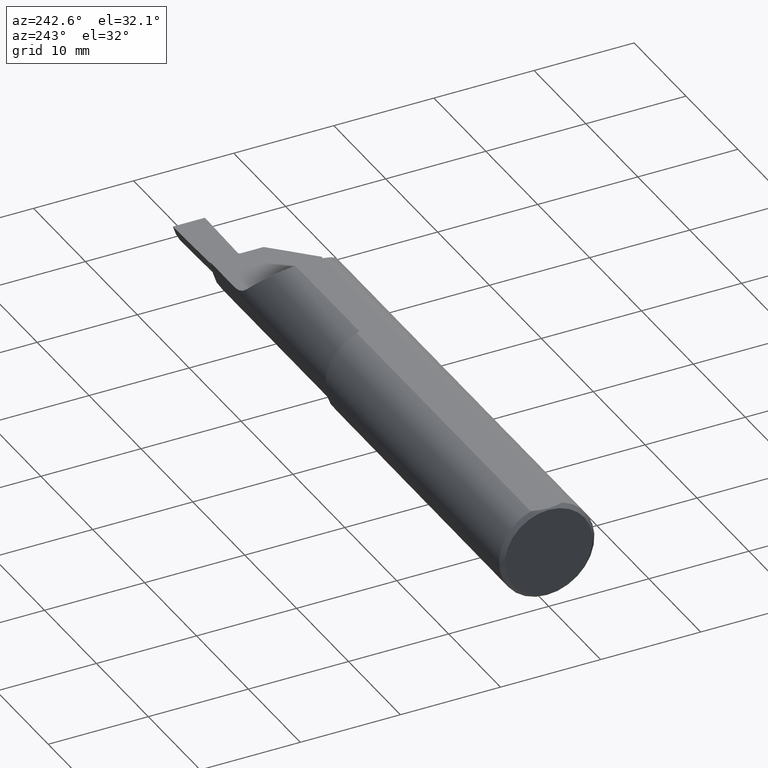
[diagram: clean part render]
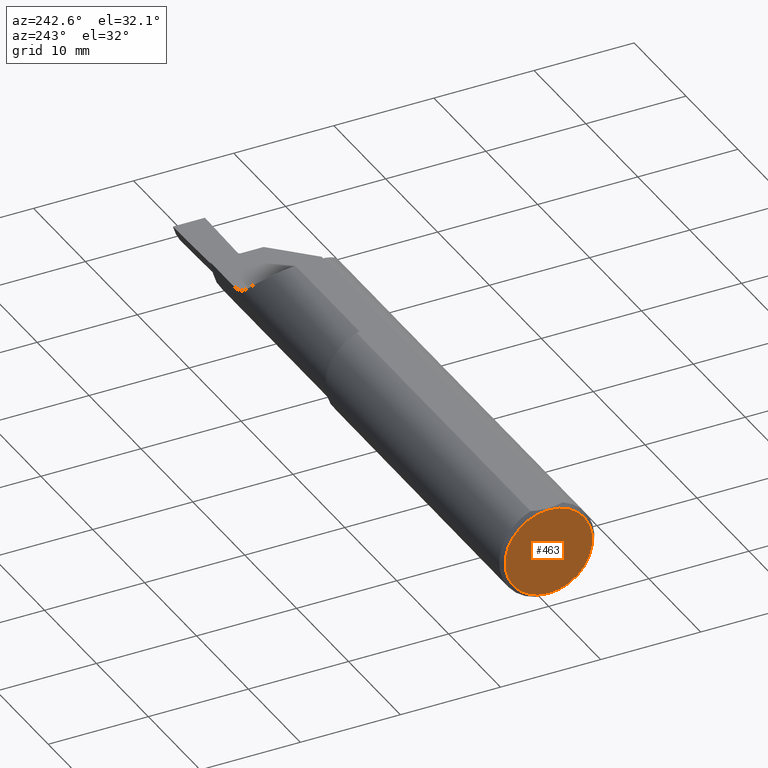
[diagram: same view with one face highlighted and labeled with its STEP entity id]
A machine part, auxiliary view. The second image highlights one B-rep face of the part: STEP entity #463.
In plain terms, the highlighted planar face has unit normal (1, 0, 0).
Its self-contained STEP definition (entity closure, byte-faithful):
#42 = DIRECTION ( 'NONE',  ( 1.000000000000000000, 0.000000000000000000, 0.000000000000000000 ) ) ;
#87 = DIRECTION ( 'NONE',  ( -1.000000000000000000, -0.000000000000000000, -0.000000000000000000 ) ) ;
#120 = EDGE_LOOP ( 'NONE', ( #359, #735 ) ) ;
#164 = CIRCLE ( 'NONE', #740, 0.1723500000000004195 ) ;
#165 = DIRECTION ( 'NONE',  ( -1.000000000000000000, -0.000000000000000000, -0.000000000000000000 ) ) ;
#226 = CIRCLE ( 'NONE', #697, 0.1723500000000004195 ) ;
#231 = FACE_OUTER_BOUND ( 'NONE', #120, .T. ) ;
#270 = VERTEX_POINT ( 'NONE', #537 ) ;
#299 = CARTESIAN_POINT ( 'NONE',  ( 0.000000000000000000, 2.202527268266516892E-17, 0.1723500000000004195 ) ) ;
#307 = EDGE_CURVE ( 'NONE', #270, #422, #164, .T. ) ;
#358 = CARTESIAN_POINT ( 'NONE',  ( 0.000000000000000000, 0.000000000000000000, 0.000000000000000000 ) ) ;
#359 = ORIENTED_EDGE ( 'NONE', *, *, #307, .T. ) ;
#402 = EDGE_CURVE ( 'NONE', #422, #270, #226, .T. ) ;
#422 = VERTEX_POINT ( 'NONE', #299 ) ;
#463 = ADVANCED_FACE ( 'NONE', ( #231 ), #700, .F. ) ;
#487 = CARTESIAN_POINT ( 'NONE',  ( 0.000000000000000000, 0.000000000000000000, 0.000000000000000000 ) ) ;
#491 = DIRECTION ( 'NONE',  ( 0.000000000000000000, 0.000000000000000000, -1.000000000000000000 ) ) ;
#537 = CARTESIAN_POINT ( 'NONE',  ( 0.000000000000000000, 0.000000000000000000, -0.1723500000000004195 ) ) ;
#618 = DIRECTION ( 'NONE',  ( 0.000000000000000000, 0.000000000000000000, -1.000000000000000000 ) ) ;
#620 = DIRECTION ( 'NONE',  ( 0.000000000000000000, 0.000000000000000000, -1.000000000000000000 ) ) ;
#627 = CARTESIAN_POINT ( 'NONE',  ( 0.000000000000000000, 0.000000000000000000, 0.000000000000000000 ) ) ;
#697 = AXIS2_PLACEMENT_3D ( 'NONE', #627, #165, #491 ) ;
#700 = PLANE ( 'NONE',  #796 ) ;
#735 = ORIENTED_EDGE ( 'NONE', *, *, #402, .T. ) ;
#740 = AXIS2_PLACEMENT_3D ( 'NONE', #358, #87, #620 ) ;
#796 = AXIS2_PLACEMENT_3D ( 'NONE', #487, #42, #618 ) ;